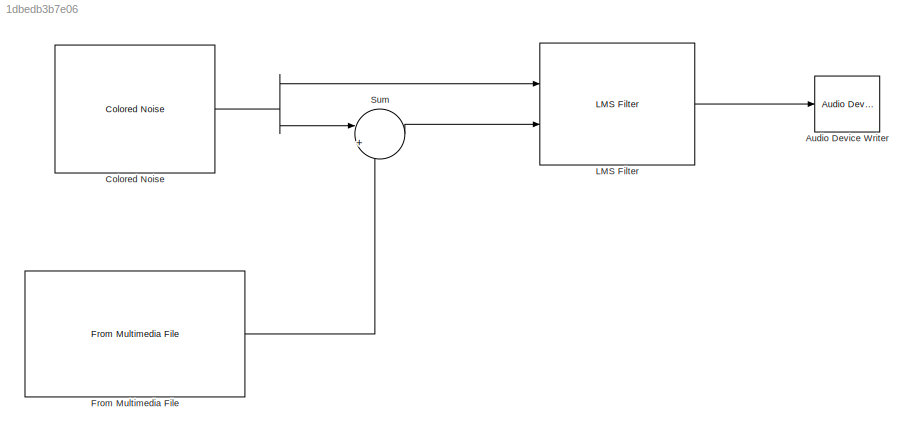
MODEL slx_1dbedb3b7e06
KIND model
CONFIG AbsTol = auto
CONFIG EnableMultiTasking = off
CONFIG FixedStep = auto
CONFIG MaxStep = auto
CONFIG MinStep = auto
CONFIG RelTol = 1e-3
CONFIG SampleTimeConstraint = Unconstrained
CONFIG SolverName = VariableStepAuto
CONFIG StartTime = 0.0
CONFIG StopTime = 20
BLOCK [Reference] Audio Device Writer  REF=dspsnks4/Audio Device
Writer
  Ports = [1]
  SourceBlock = dspsnks4/Audio Device\nWriter
  SourceProductName = DSP System Toolbox
  SourceType = Audio Device Writer
BLOCK [Reference] Colored Noise  REF=dspsrcs4/Colored Noise
  Ports = [0, 1]
  SourceBlock = dspsrcs4/Colored Noise
  SourceProductName = DSP System Toolbox
  SourceType = dsp.simulink.ColoredNoise
BLOCK [Reference] From Multimedia File  REF=dspvision/From Multimedia File
  Ports = [0, 1]
  SourceBlock = dspvision/From Multimedia File
  SourceProductBaseCode = DS,HW,VP
  SourceType = From Multimedia File
BLOCK [Reference] LMS Filter  REF=dspadpt3/LMS Filter
  Ports = [2, 3]
  SourceBlock = dspadpt3/LMS Filter
  SourceProductBaseCode = DS
  SourceType = LMS Filter
BLOCK [Sum] Sum
  Inputs = |++
  Ports = [2, 1]
NET Colored Noise:1 -> LMS Filter:1, Sum:1
LINE From Multimedia File:1 -> Sum:2
LINE LMS Filter:2 -> Audio Device Writer:1
LINE Sum:1 -> LMS Filter:2
note: NET lines group one-source signal fan-out (src -> all destinations, sorted); 1:1 wires keep LINE
